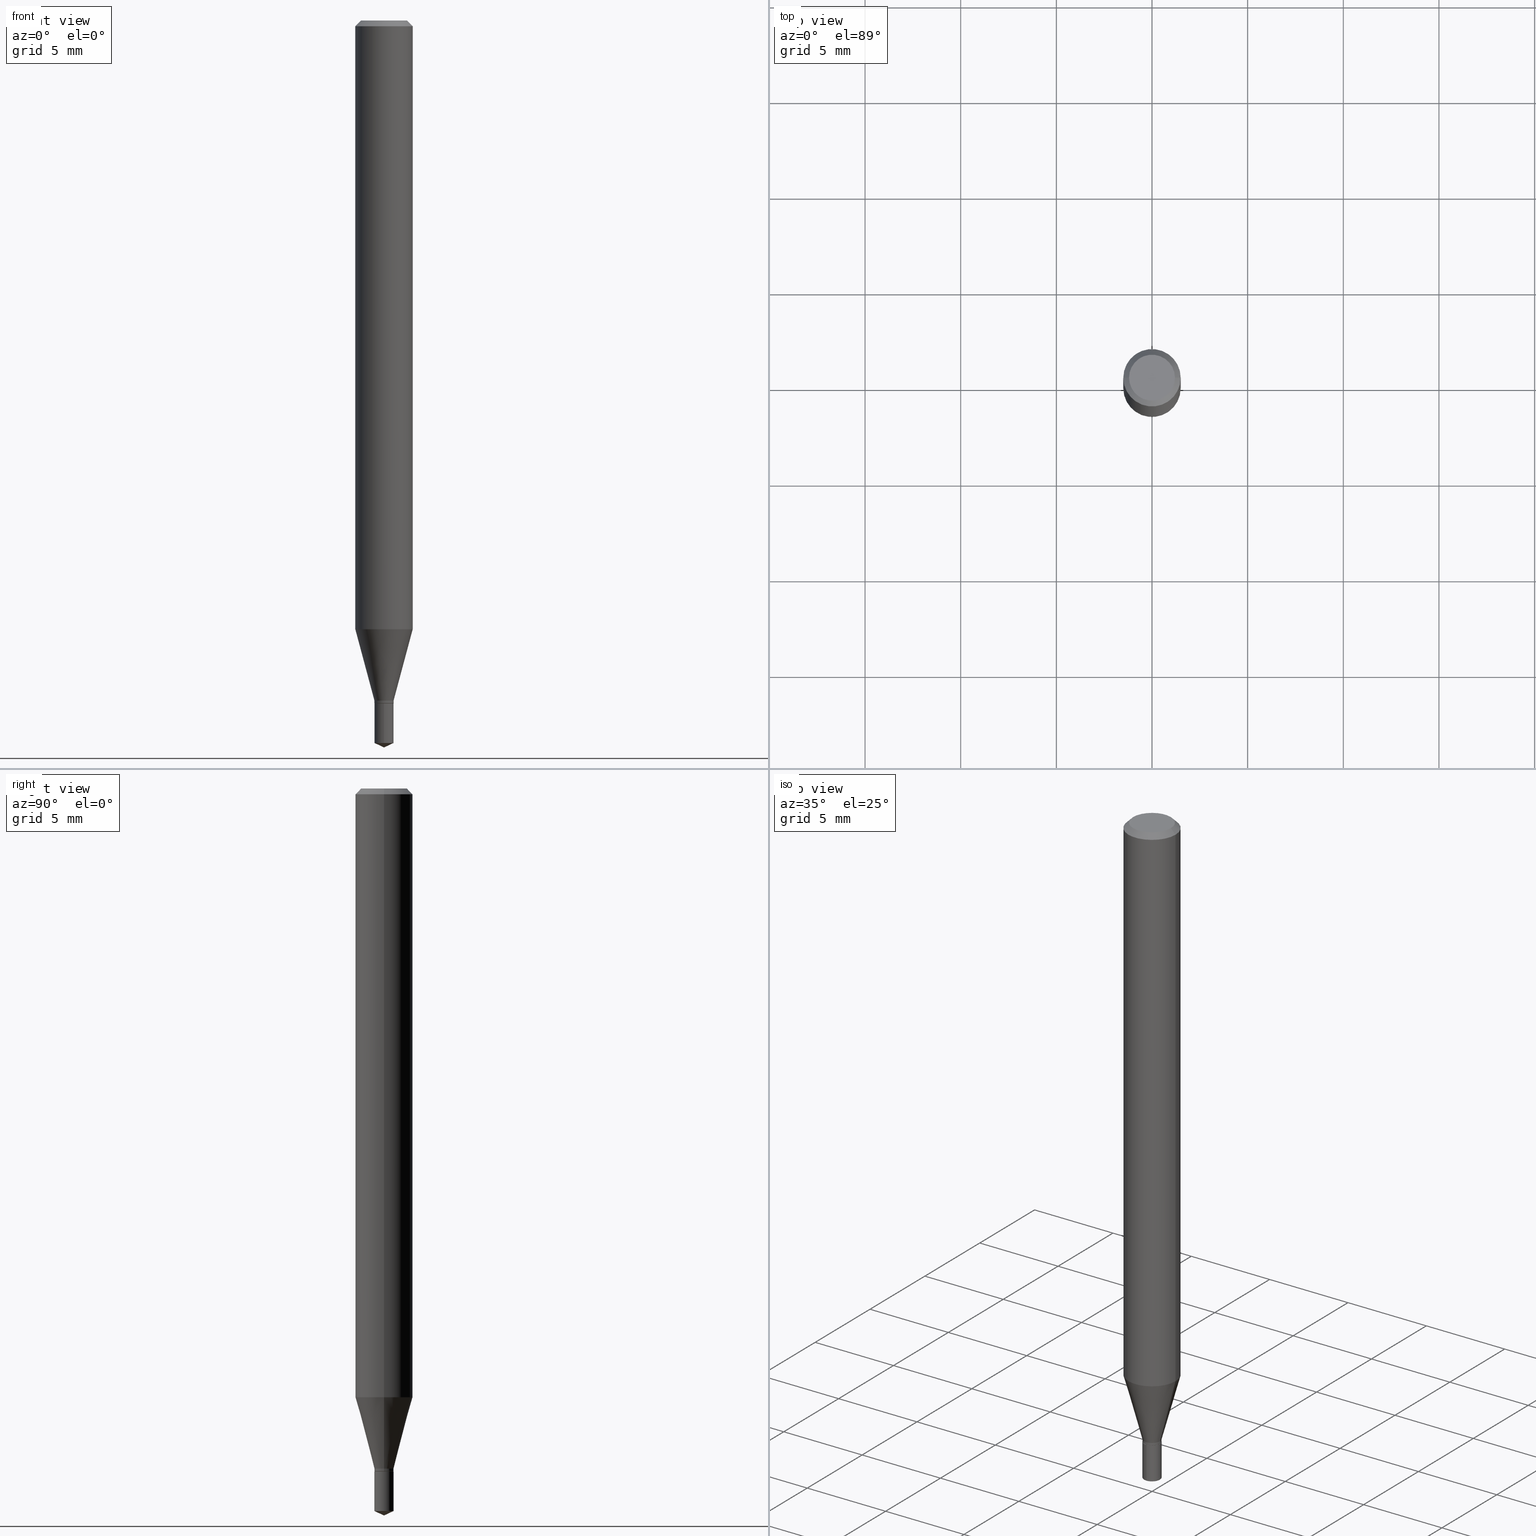
[diagram: canonical four-view strip — front | top / right | iso, engineering-drawing reading convention]
A machine part, canonical four-view strip (front | top / right | iso — engineering-drawing reading convention). The complete STEP part file that produces these views, byte-faithful:
ISO-10303-21;
HEADER;
FILE_DESCRIPTION (( 'STEP AP203' ),
    '1' );
FILE_NAME ('07060.STEP',
    '2024-04-23T19:29:03',
    ( '' ),
    ( '' ),
    'SwSTEP 2.0',
    'SolidWorks 2023',
    '' );
FILE_SCHEMA (( 'CONFIG_CONTROL_DESIGN' ));
ENDSEC;

DATA;
#1 = VECTOR ( 'NONE', #344, 39.37007874015748143 ) ;
#2 = CIRCLE ( 'NONE', #442, 0.05905000000000015098 ) ;
#3 = CC_DESIGN_SECURITY_CLASSIFICATION ( #365, ( #24 ) ) ;
#4 = DIRECTION ( 'NONE',  ( 2.445468806185136597E-29, -3.491481338843145583E-15, -1.000000000000000000 ) ) ;
#5 = DIRECTION ( 'NONE',  ( -2.445468806185136597E-29, 3.491481338843145583E-15, 1.000000000000000000 ) ) ;
#6 = CC_DESIGN_PERSON_AND_ORGANIZATION_ASSIGNMENT ( #473, #276, ( #24 ) ) ;
#7 = ORIENTED_EDGE ( 'NONE', *, *, #432, .T. ) ;
#8 = PERSON_AND_ORGANIZATION ( #34, #270 ) ;
#9 = CIRCLE ( 'NONE', #218, 0.01969999999999999876 ) ;
#10 = ORIENTED_EDGE ( 'NONE', *, *, #37, .T. ) ;
#11 = DATE_AND_TIME ( #200, #408 ) ;
#12 = ORIENTED_EDGE ( 'NONE', *, *, #26, .F. ) ;
#13 = LINE ( 'NONE', #462, #407 ) ;
#14 = UNCERTAINTY_MEASURE_WITH_UNIT (LENGTH_MEASURE( 1.000000000000000082E-05 ), #292, 'distance_accuracy_value', 'NONE');
#15 = CYLINDRICAL_SURFACE ( 'NONE', #287, 0.01969999999999999876 ) ;
#16 = VERTEX_POINT ( 'NONE', #136 ) ;
#17 = EDGE_CURVE ( 'NONE', #138, #446, #443, .T. ) ;
#18 = CARTESIAN_POINT ( 'NONE',  ( 3.422678141136717106E-29, -4.886677281844866061E-15, -1.399599999999999955 ) ) ;
#19 = CARTESIAN_POINT ( 'NONE',  ( 3.695067794339211571E-29, -5.171475619178125435E-15, -1.496099999999999985 ) ) ;
#20 = AXIS2_PLACEMENT_3D ( 'NONE', #405, #211, #366 ) ;
#21 = AXIS2_PLACEMENT_3D ( 'NONE', #284, #36, #214 ) ;
#22 = ORIENTED_EDGE ( 'NONE', *, *, #253, .T. ) ;
#23 = PERSON_AND_ORGANIZATION ( #34, #270 ) ;
#24 = PRODUCT_DEFINITION_FORMATION_WITH_SPECIFIED_SOURCE ( 'ANY', '', #409, .NOT_KNOWN. ) ;
#25 = CYLINDRICAL_SURFACE ( 'NONE', #141, 0.01969999999999999876 ) ;
#26 = EDGE_CURVE ( 'NONE', #331, #138, #321, .T. ) ;
#27 = ORIENTED_EDGE ( 'NONE', *, *, #179, .F. ) ;
#28 = LINE ( 'NONE', #124, #40 ) ;
#29 = VERTEX_POINT ( 'NONE', #305 ) ;
#30 = DIRECTION ( 'NONE',  ( -2.469800009584394325E-29, 3.456637670729313466E-15, 1.000000000000000000 ) ) ;
#31 = EDGE_LOOP ( 'NONE', ( #352, #130, #128, #132 ) ) ;
#32 = CARTESIAN_POINT ( 'NONE',  ( 1.399769189447740433E-16, 0.01969999999999508949, -1.405499999999999750 ) ) ;
#33 = CARTESIAN_POINT ( 'NONE',  ( 3.435883672690116336E-29, -4.905531281074619088E-15, -1.404999999999999805 ) ) ;
#34 = PERSON ( 'UNSPECIFIED', 'UNSPECIFIED', 'UNSPECIFIED', ('UNSPECIFIED'), ('UNSPECIFIED'), ('UNSPECIFIED') ) ;
#35 = AXIS2_PLACEMENT_3D ( 'NONE', #377, #121, #388 ) ;
#36 = DIRECTION ( 'NONE',  ( -2.445468806185136597E-29, 3.491481338843145583E-15, 1.000000000000000000 ) ) ;
#37 = EDGE_CURVE ( 'NONE', #162, #309, #66, .T. ) ;
#38 = APPROVAL_STATUS ( 'not_yet_approved' ) ;
#39 = DIRECTION ( 'NONE',  ( -2.445468806185136597E-29, 3.491481338843145583E-15, 1.000000000000000000 ) ) ;
#40 = VECTOR ( 'NONE', #269, 39.37007874015748143 ) ;
#41 = CIRCLE ( 'NONE', #182, 0.01969999999999999182 ) ;
#42 = CARTESIAN_POINT ( 'NONE',  ( 2.888098660104664642E-31, -4.123439461173780879E-17, -0.01181000000000007565 ) ) ;
#43 = FACE_OUTER_BOUND ( 'NONE', #380, .T. ) ;
#44 = EDGE_LOOP ( 'NONE', ( #273, #91, #475, #65 ) ) ;
#45 = CARTESIAN_POINT ( 'NONE',  ( 3.437106407093208576E-29, -4.907277021744039803E-15, -1.405499999999999527 ) ) ;
#46 = VECTOR ( 'NONE', #472, 39.37007874015748143 ) ;
#47 = DIRECTION ( 'NONE',  ( -2.445468806185136597E-29, 3.491481338843145583E-15, 1.000000000000000000 ) ) ;
#48 = ORIENTED_EDGE ( 'NONE', *, *, #67, .F. ) ;
#49 = CARTESIAN_POINT ( 'NONE',  ( 3.437106407093209137E-29, -4.907277021744040592E-15, -1.405499999999999750 ) ) ;
#50 = CARTESIAN_POINT ( 'NONE',  ( -1.375643647503850468E-16, -0.01970000000000490456, -1.405499999999999750 ) ) ;
#51 = ORIENTED_EDGE ( 'NONE', *, *, #279, .F. ) ;
#52 = APPLICATION_PROTOCOL_DEFINITION ( 'international standard', 'config_control_design', 1994, #482 ) ;
#53 = DIRECTION ( 'NONE',  ( -2.445468806185136597E-29, 3.491481338843145583E-15, 1.000000000000000000 ) ) ;
#54 = FACE_OUTER_BOUND ( 'NONE', #319, .T. ) ;
#55 = EDGE_LOOP ( 'NONE', ( #304, #27 ) ) ;
#56 = DIRECTION ( 'NONE',  ( -2.469800009584394325E-29, 3.456637670729313466E-15, 1.000000000000000000 ) ) ;
#57 = CARTESIAN_POINT ( 'NONE',  ( 3.437106407093209137E-29, -4.907277021744040592E-15, -1.405499999999999750 ) ) ;
#58 = LOCAL_TIME ( 15, 29, 3.000000000000000000, #403 ) ;
#59 = ORIENTED_EDGE ( 'NONE', *, *, #483, .F. ) ;
#60 = CARTESIAN_POINT ( 'NONE',  ( -0.05904999999999999832, 3.711095515056362547E-16, -0.01181000000000007565 ) ) ;
#61 = DIRECTION ( 'NONE',  ( -2.445468806185136597E-29, 3.491481338843145583E-15, 1.000000000000000000 ) ) ;
#62 = ORIENTED_EDGE ( 'NONE', *, *, #187, .T. ) ;
#63 = DIRECTION ( 'NONE',  ( -2.438088387897960049E-29, 3.491481338843145188E-15, 1.000000000000000000 ) ) ;
#64 = PERSON_AND_ORGANIZATION_ROLE ( 'classification_officer' ) ;
#65 = ORIENTED_EDGE ( 'NONE', *, *, #448, .F. ) ;
#66 = LINE ( 'NONE', #135, #399 ) ;
#67 = EDGE_CURVE ( 'NONE', #429, #96, #463, .T. ) ;
#68 = PRODUCT_DEFINITION_SHAPE ( 'NONE', 'NONE',  #83 ) ;
#69 = CARTESIAN_POINT ( 'NONE',  ( -0.01920000000000000179, -4.770852816478099815E-15, -1.405499999999999527 ) ) ;
#70 = AXIS2_PLACEMENT_3D ( 'NONE', #110, #76, #258 ) ;
#71 = MANIFOLD_SOLID_BREP ( 'Body-Move/Copy2[1]', #464 ) ;
#72 = LINE ( 'NONE', #69, #114 ) ;
#73 = APPROVAL_ROLE ( '' ) ;
#74 = DIRECTION ( 'NONE',  ( -2.445468806185136597E-29, 3.491481338843145583E-15, 1.000000000000000000 ) ) ;
#75 = AXIS2_PLACEMENT_3D ( 'NONE', #372, #5, #151 ) ;
#76 = DIRECTION ( 'NONE',  ( 0.000000000000000000, 0.000000000000000000, 1.000000000000000000 ) ) ;
#77 = EDGE_CURVE ( 'NONE', #29, #162, #477, .T. ) ;
#78 = CARTESIAN_POINT ( 'NONE',  ( 1.399769189447760894E-16, 0.01969999999999508949, -1.405499999999999750 ) ) ;
#79 = CONICAL_SURFACE ( 'NONE', #322, 0.01920000000000000179, 0.7853981633978154298 ) ;
#80 = EDGE_CURVE ( 'NONE', #16, #96, #320, .T. ) ;
#81 = LINE ( 'NONE', #271, #311 ) ;
#82 = ORIENTED_EDGE ( 'NONE', *, *, #334, .F. ) ;
#83 = PRODUCT_DEFINITION ( 'UNKNOWN', '', #24, #227 ) ;
#84 = ORIENTED_EDGE ( 'NONE', *, *, #186, .F. ) ;
#85 = EDGE_LOOP ( 'NONE', ( #152, #314, #62, #458 ) ) ;
#86 = CIRCLE ( 'NONE', #382, 0.01969999999999999182 ) ;
#87 = ORIENTED_EDGE ( 'NONE', *, *, #417, .T. ) ;
#88 = APPROVAL_ROLE ( '' ) ;
#89 = LINE ( 'NONE', #32, #137 ) ;
#90 = LINE ( 'NONE', #391, #420 ) ;
#91 = ORIENTED_EDGE ( 'NONE', *, *, #316, .T. ) ;
#92 = ORIENTED_EDGE ( 'NONE', *, *, #253, .F. ) ;
#93 = CARTESIAN_POINT ( 'NONE',  ( 3.695667537867242587E-29, -5.171475619178124646E-15, -1.496099999999999985 ) ) ;
#94 = DIRECTION ( 'NONE',  ( -2.469800009584394325E-29, 3.456637670729313466E-15, 1.000000000000000000 ) ) ;
#95 = ADVANCED_FACE ( 'NONE', ( #206 ), #212, .T. ) ;
#96 = VERTEX_POINT ( 'NONE', #170 ) ;
#97 = SECURITY_CLASSIFICATION_LEVEL ( 'unclassified' ) ;
#98 = DIRECTION ( 'NONE',  ( -2.445468806185136597E-29, 3.491481338843145583E-15, 1.000000000000000000 ) ) ;
#99 = CARTESIAN_POINT ( 'NONE',  ( 3.437106407093209137E-29, -4.907277021744040592E-15, -1.405499999999999750 ) ) ;
#100 = AXIS2_PLACEMENT_3D ( 'NONE', #428, #119, #469 ) ;
#101 = AXIS2_PLACEMENT_3D ( 'NONE', #422, #232, #300 ) ;
#102 = CARTESIAN_POINT ( 'NONE',  ( 8.265746106709734507E-48, -1.180129479067563789E-33, -3.380025165646692144E-19 ) ) ;
#103 = LINE ( 'NONE', #327, #294 ) ;
#104 = CYLINDRICAL_SURFACE ( 'NONE', #223, 0.01969999999999999182 ) ;
#105 = ADVANCED_FACE ( 'NONE', ( #193 ), #25, .T. ) ;
#106 = AXIS2_PLACEMENT_3D ( 'NONE', #183, #418, #454 ) ;
#107 = APPROVAL ( #38, 'UNSPECIFIED' ) ;
#108 = EDGE_CURVE ( 'NONE', #175, #138, #28, .T. ) ;
#109 = CIRCLE ( 'NONE', #383, 0.04724000000000000421 ) ;
#110 = CARTESIAN_POINT ( 'NONE',  ( 0.000000000000000000, 0.000000000000000000, 0.000000000000000000 ) ) ;
#111 = ADVANCED_FACE ( 'NONE', ( #201 ), #353, .F. ) ;
#112 = FACE_OUTER_BOUND ( 'NONE', #85, .T. ) ;
#113 = DIRECTION ( 'NONE',  ( -2.445468806185136597E-29, 3.491481338843145583E-15, 1.000000000000000000 ) ) ;
#114 = VECTOR ( 'NONE', #217, 39.37007874015748143 ) ;
#115 = LOCAL_TIME ( 15, 29, 3.000000000000000000, #208 ) ;
#116 = ORIENTED_EDGE ( 'NONE', *, *, #425, .T. ) ;
#117 = ORIENTED_EDGE ( 'NONE', *, *, #483, .T. ) ;
#118 = CALENDAR_DATE ( 2024, 23, 4 ) ;
#119 = DIRECTION ( 'NONE',  ( -2.445468806185136597E-29, 3.491481338843145583E-15, 1.000000000000000000 ) ) ;
#120 = ORIENTED_EDGE ( 'NONE', *, *, #433, .F. ) ;
#121 = DIRECTION ( 'NONE',  ( -2.445468806185136597E-29, 3.491481338843145583E-15, 1.000000000000000000 ) ) ;
#122 = ORIENTED_EDGE ( 'NONE', *, *, #158, .F. ) ;
#123 = DIRECTION ( 'NONE',  ( -0.2588190451025214611, 5.211531920934551042E-15, 0.9659258262890682012 ) ) ;
#124 = CARTESIAN_POINT ( 'NONE',  ( 0.01969999999999999182, -1.375643647504194116E-16, 9.606068248317989714E-31 ) ) ;
#125 = AXIS2_PLACEMENT_3D ( 'NONE', #167, #436, #471 ) ;
#126 = CC_DESIGN_APPROVAL ( #107, ( #365 ) ) ;
#127 = FACE_OUTER_BOUND ( 'NONE', #31, .T. ) ;
#128 = ORIENTED_EDGE ( 'NONE', *, *, #247, .F. ) ;
#129 = CYLINDRICAL_SURFACE ( 'NONE', #166, 0.05905000000000007465 ) ;
#130 = ORIENTED_EDGE ( 'NONE', *, *, #145, .T. ) ;
#131 = PERSON_AND_ORGANIZATION_ROLE ( 'creator' ) ;
#132 = ORIENTED_EDGE ( 'NONE', *, *, #425, .F. ) ;
#133 = CARTESIAN_POINT ( 'NONE',  ( 3.638182060787519581E-29, -5.188694819350753502E-15, -1.486913739134346546 ) ) ;
#134 = DIRECTION ( 'NONE',  ( -6.982962677686265133E-15, -1.000000000000000000, 0.000000000000000000 ) ) ;
#135 = CARTESIAN_POINT ( 'NONE',  ( 0.05904999999999999832, -4.463468013801466955E-16, -0.01181000000000007565 ) ) ;
#136 = CARTESIAN_POINT ( 'NONE',  ( -1.375643647503830254E-16, -0.01970000000000518905, -1.486913739134346546 ) ) ;
#137 = VECTOR ( 'NONE', #236, 39.37007874015748143 ) ;
#138 = VERTEX_POINT ( 'NONE', #359 ) ;
#139 = CARTESIAN_POINT ( 'NONE',  ( 8.265746106709734507E-48, -1.180129479067563789E-33, -3.380025165646692144E-19 ) ) ;
#140 = CARTESIAN_POINT ( 'NONE',  ( -0.05904999999999999832, -1.788007513125965164E-15, -0.01181000000000007565 ) ) ;
#141 = AXIS2_PLACEMENT_3D ( 'NONE', #49, #387, #310 ) ;
#142 = DIRECTION ( 'NONE',  ( -2.445468806185136597E-29, 3.491481338843145583E-15, 1.000000000000000000 ) ) ;
#143 = VECTOR ( 'NONE', #339, 39.37007874015748143 ) ;
#144 = DIMENSIONAL_EXPONENTS ( 1.000000000000000000, 0.000000000000000000, 0.000000000000000000, 0.000000000000000000, 0.000000000000000000, 0.000000000000000000, 0.000000000000000000 ) ;
#145 = EDGE_CURVE ( 'NONE', #96, #343, #89, .T. ) ;
#146 = FACE_OUTER_BOUND ( 'NONE', #192, .T. ) ;
#147 = DIRECTION ( 'NONE',  ( -6.982962677686267499E-15, -1.000000000000000000, 3.520397390770465703E-15 ) ) ;
#148 = AXIS2_PLACEMENT_3D ( 'NONE', #18, #61, #197 ) ;
#149 = LENGTH_MEASURE_WITH_UNIT ( LENGTH_MEASURE( 0.02539999999999999897 ), #381 );
#150 = AXIS2_PLACEMENT_3D ( 'NONE', #395, #225, #306 ) ;
#151 = DIRECTION ( 'NONE',  ( 1.000000000000000000, -6.982962677686266711E-15, 4.876176775795936353E-29 ) ) ;
#152 = ORIENTED_EDGE ( 'NONE', *, *, #37, .F. ) ;
#153 = PERSON_AND_ORGANIZATION_ROLE ( 'design_owner' ) ;
#154 = APPROVAL_PERSON_ORGANIZATION ( #303, #194, #88 ) ;
#155 = APPROVAL ( #397, 'UNSPECIFIED' ) ;
#156 = DIRECTION ( 'NONE',  ( 1.000000000000000000, -6.982962677686266711E-15, 4.876176775795936353E-29 ) ) ;
#157 = ORIENTED_EDGE ( 'NONE', *, *, #179, .T. ) ;
#158 = EDGE_CURVE ( 'NONE', #138, #331, #255, .T. ) ;
#159 = ORIENTED_EDGE ( 'NONE', *, *, #417, .F. ) ;
#160 = CALENDAR_DATE ( 2024, 23, 4 ) ;
#161 = DIRECTION ( 'NONE',  ( -6.982962677686265133E-15, -1.000000000000000000, 0.000000000000000000 ) ) ;
#162 = VERTEX_POINT ( 'NONE', #216 ) ;
#163 = CARTESIAN_POINT ( 'NONE',  ( 2.888098660104664642E-31, -4.123439461173780879E-17, -0.01181000000000007565 ) ) ;
#164 = CC_DESIGN_DATE_AND_TIME_ASSIGNMENT ( #11, #313, ( #83 ) ) ;
#165 = CIRCLE ( 'NONE', #185, 0.01969999999999999876 ) ;
#166 = AXIS2_PLACEMENT_3D ( 'NONE', #172, #47, #156 ) ;
#167 = CARTESIAN_POINT ( 'NONE',  ( 2.888098660104664642E-31, -4.123439461173780879E-17, -0.01181000000000007565 ) ) ;
#168 = VERTEX_POINT ( 'NONE', #362 ) ;
#169 = ORIENTED_EDGE ( 'NONE', *, *, #17, .T. ) ;
#170 = CARTESIAN_POINT ( 'NONE',  ( 1.399769189447761140E-16, 0.01969999999999480847, -1.486913739134346546 ) ) ;
#171 = EDGE_CURVE ( 'NONE', #175, #349, #86, .T. ) ;
#172 = CARTESIAN_POINT ( 'NONE',  ( 0.000000000000000000, 0.000000000000000000, 0.000000000000000000 ) ) ;
#173 = PERSON_AND_ORGANIZATION ( #34, #270 ) ;
#174 = CARTESIAN_POINT ( 'NONE',  ( 0.05905000000000015098, -4.786275548690248872E-15, -1.252743800722164513 ) ) ;
#175 = VERTEX_POINT ( 'NONE', #474 ) ;
#176 = CARTESIAN_POINT ( 'NONE',  ( 0.01969999999999999182, -5.024241646595286064E-15, -1.399599999999999955 ) ) ;
#177 = LINE ( 'NONE', #489, #415 ) ;
#178 = COORDINATED_UNIVERSAL_TIME_OFFSET ( 5, 0, .BEHIND. ) ;
#179 = EDGE_CURVE ( 'NONE', #168, #285, #486, .T. ) ;
#180 = VECTOR ( 'NONE', #441, 39.37007874015748143 ) ;
#181 = CARTESIAN_POINT ( 'NONE',  ( 3.437106407093209137E-29, -4.907277021744040592E-15, -1.405499999999999750 ) ) ;
#182 = AXIS2_PLACEMENT_3D ( 'NONE', #33, #142, #289 ) ;
#183 = CARTESIAN_POINT ( 'NONE',  ( 3.638182060787519581E-29, -5.188694819350753502E-15, -1.486913739134346546 ) ) ;
#184 = FACE_OUTER_BOUND ( 'NONE', #237, .T. ) ;
#185 = AXIS2_PLACEMENT_3D ( 'NONE', #181, #411, #324 ) ;
#186 = EDGE_CURVE ( 'NONE', #238, #309, #375, .T. ) ;
#187 = EDGE_CURVE ( 'NONE', #29, #238, #398, .T. ) ;
#188 = ORIENTED_EDGE ( 'NONE', *, *, #488, .T. ) ;
#189 = FACE_OUTER_BOUND ( 'NONE', #345, .T. ) ;
#190 = CIRCLE ( 'NONE', #106, 0.01969999999999999182 ) ;
#191 = DIRECTION ( 'NONE',  ( 2.469800009584394044E-29, -3.456637670729313466E-15, -1.000000000000000000 ) ) ;
#192 = EDGE_LOOP ( 'NONE', ( #92, #299, #438, #12 ) ) ;
#193 = FACE_OUTER_BOUND ( 'NONE', #195, .T. ) ;
#194 = APPROVAL ( #385, 'UNSPECIFIED' ) ;
#195 = EDGE_LOOP ( 'NONE', ( #384, #479, #116, #120 ) ) ;
#196 = APPROVAL_ROLE ( '' ) ;
#197 = DIRECTION ( 'NONE',  ( 1.000000000000000000, -6.982962677686280910E-15, 0.000000000000000000 ) ) ;
#198 = DIRECTION ( 'NONE',  ( -2.469800009584394325E-29, 3.456637670729313466E-15, 1.000000000000000000 ) ) ;
#199 = EDGE_LOOP ( 'NONE', ( #51, #117, #226, #84 ) ) ;
#200 = CALENDAR_DATE ( 2024, 23, 4 ) ;
#201 = FACE_OUTER_BOUND ( 'NONE', #423, .T. ) ;
#202 = AXIS2_PLACEMENT_3D ( 'NONE', #390, #53, #325 ) ;
#203 = DIRECTION ( 'NONE',  ( -6.328713451373370956E-15, -0.9063077870366487154, 0.4226182617407021613 ) ) ;
#204 = ORIENTED_EDGE ( 'NONE', *, *, #210, .T. ) ;
#205 = ORIENTED_EDGE ( 'NONE', *, *, #67, .T. ) ;
#206 = FACE_OUTER_BOUND ( 'NONE', #275, .T. ) ;
#207 = FACE_OUTER_BOUND ( 'NONE', #55, .T. ) ;
#208 = COORDINATED_UNIVERSAL_TIME_OFFSET ( 5, 0, .BEHIND. ) ;
#209 = DIRECTION ( 'NONE',  ( -1.000000000000000000, 6.982962677686265922E-15, -4.876176775795935793E-29 ) ) ;
#210 = EDGE_CURVE ( 'NONE', #331, #427, #13, .T. ) ;
#211 = DIRECTION ( 'NONE',  ( -2.445468806185136597E-29, 3.491481338843145583E-15, 1.000000000000000000 ) ) ;
#212 = CONICAL_SURFACE ( 'NONE', #298, 0.05904999999999999832, 0.7853981633974450594 ) ;
#213 = CONICAL_SURFACE ( 'NONE', #487, 84.42940631927405093, 1.134464013796314674 ) ;
#214 = DIRECTION ( 'NONE',  ( 1.000000000000000000, -6.982962677686280910E-15, 0.000000000000000000 ) ) ;
#215 = FACE_OUTER_BOUND ( 'NONE', #435, .T. ) ;
#216 = CARTESIAN_POINT ( 'NONE',  ( 0.04724000000000000421, -3.852183633974369345E-16, -3.380025165621689721E-19 ) ) ;
#217 = DIRECTION ( 'NONE',  ( -0.7071067811868071429, 7.493145998871292905E-15, 0.7071067811862878916 ) ) ;
#218 = AXIS2_PLACEMENT_3D ( 'NONE', #99, #30, #134 ) ;
#219 = CC_DESIGN_DATE_AND_TIME_ASSIGNMENT ( #252, #414, ( #365 ) ) ;
#220 = APPLICATION_PROTOCOL_DEFINITION ( 'international standard', 'config_control_design', 1994, #268 ) ;
#221 = CONICAL_SURFACE ( 'NONE', #20, 0.01920000000000000179, 0.7853981633978154298 ) ;
#222 = CYLINDRICAL_SURFACE ( 'NONE', #75, 0.05905000000000007465 ) ;
#223 = AXIS2_PLACEMENT_3D ( 'NONE', #444, #39, #361 ) ;
#224 = DIRECTION ( 'NONE',  ( -2.445468806185136597E-29, 3.491481338843145583E-15, 1.000000000000000000 ) ) ;
#225 = DIRECTION ( 'NONE',  ( -2.445468806185136597E-29, 3.491481338843145583E-15, 1.000000000000000000 ) ) ;
#226 = ORIENTED_EDGE ( 'NONE', *, *, #449, .T. ) ;
#227 = DESIGN_CONTEXT ( 'detailed design', #482, 'design' ) ;
#228 = ORIENTED_EDGE ( 'NONE', *, *, #210, .F. ) ;
#229 = APPROVAL_DATE_TIME ( #350, #194 ) ;
#230 = DIRECTION ( 'NONE',  ( 0.7071067811865452413, -7.319954787623248157E-15, -0.7071067811865497932 ) ) ;
#231 = AXIS2_PLACEMENT_3D ( 'NONE', #402, #63, #439 ) ;
#232 = DIRECTION ( 'NONE',  ( -2.469800009584394325E-29, 3.456637670729313466E-15, 1.000000000000000000 ) ) ;
#233 = ADVANCED_FACE ( 'NONE', ( #267 ), #221, .T. ) ;
#234 = ORIENTED_EDGE ( 'NONE', *, *, #247, .T. ) ;
#235 = COORDINATED_UNIVERSAL_TIME_OFFSET ( 5, 0, .BEHIND. ) ;
#236 = DIRECTION ( 'NONE',  ( -2.469800009584394325E-29, 3.456637670729313466E-15, 1.000000000000000000 ) ) ;
#237 = EDGE_LOOP ( 'NONE', ( #188, #245, #357, #393 ) ) ;
#238 = VERTEX_POINT ( 'NONE', #140 ) ;
#239 = ORIENTED_EDGE ( 'NONE', *, *, #171, .T. ) ;
#240 = COORDINATED_UNIVERSAL_TIME_OFFSET ( 5, 0, .BEHIND. ) ;
#241 = DIRECTION ( 'NONE',  ( 1.000000000000000000, -6.982962677686266711E-15, 0.000000000000000000 ) ) ;
#242 = AXIS2_PLACEMENT_3D ( 'NONE', #102, #394, #318 ) ;
#243 = AXIS2_PLACEMENT_3D ( 'NONE', #42, #4, #335 ) ;
#244 = ADVANCED_FACE ( 'NONE', ( #476 ), #336, .T. ) ;
#245 = ORIENTED_EDGE ( 'NONE', *, *, #279, .T. ) ;
#246 = CARTESIAN_POINT ( 'NONE',  ( 4.132873053354867254E-48, -5.900647395337818946E-34, -1.690012582823346072E-19 ) ) ;
#247 = EDGE_CURVE ( 'NONE', #396, #343, #165, .T. ) ;
#248 = ADVANCED_FACE ( 'NONE', ( #215 ), #104, .T. ) ;
#249 = CARTESIAN_POINT ( 'NONE',  ( 0.05904999999999999832, -4.535783407291118600E-16, -0.01181000000000007565 ) ) ;
#250 = APPROVAL_PERSON_ORGANIZATION ( #468, #155, #196 ) ;
#251 = LOCAL_TIME ( 15, 29, 3.000000000000000000, #178 ) ;
#252 = DATE_AND_TIME ( #481, #115 ) ;
#253 = EDGE_CURVE ( 'NONE', #349, #331, #103, .T. ) ;
#254 = CYLINDRICAL_SURFACE ( 'NONE', #480, 0.01969999999999999182 ) ;
#255 = CIRCLE ( 'NONE', #202, 0.01969999999999999182 ) ;
#256 = CIRCLE ( 'NONE', #150, 0.01920000000000000179 ) ;
#257 =( NAMED_UNIT ( * ) SI_UNIT ( $, .STERADIAN. ) SOLID_ANGLE_UNIT ( ) );
#258 = DIRECTION ( 'NONE',  ( 1.000000000000000000, 0.000000000000000000, 0.000000000000000000 ) ) ;
#259 = FACE_OUTER_BOUND ( 'NONE', #434, .T. ) ;
#260 = EDGE_CURVE ( 'NONE', #349, #175, #41, .T. ) ;
#261 = CARTESIAN_POINT ( 'NONE',  ( 3.063545886807862296E-29, -4.373931602572873162E-15, -1.252743800722164513 ) ) ;
#262 = FACE_OUTER_BOUND ( 'NONE', #199, .T. ) ;
#263 = ORIENTED_EDGE ( 'NONE', *, *, #17, .F. ) ;
#264 = ORIENTED_EDGE ( 'NONE', *, *, #448, .T. ) ;
#265 = DIRECTION ( 'NONE',  ( 6.982962677686265922E-15, 1.000000000000000000, -3.456637670729313466E-15 ) ) ;
#266 = ORIENTED_EDGE ( 'NONE', *, *, #108, .F. ) ;
#267 = FACE_OUTER_BOUND ( 'NONE', #44, .T. ) ;
#268 = APPLICATION_CONTEXT ( 'configuration controlled 3d designs of mechanical parts and assemblies' ) ;
#269 = DIRECTION ( 'NONE',  ( -2.445468806185136877E-29, 3.491481338843145188E-15, 1.000000000000000000 ) ) ;
#270 = ORGANIZATION ( 'UNSPECIFIED', 'UNSPECIFIED', '' ) ;
#271 = CARTESIAN_POINT ( 'NONE',  ( 3.626672781583897993E-29, -5.269421170246108163E-15, -1.496099999999999985 ) ) ;
#272 = ORIENTED_EDGE ( 'NONE', *, *, #187, .F. ) ;
#273 = ORIENTED_EDGE ( 'NONE', *, *, #369, .T. ) ;
#274 = CARTESIAN_POINT ( 'NONE',  ( 3.437106407093209137E-29, -4.907277021744040592E-15, -1.405499999999999750 ) ) ;
#275 = EDGE_LOOP ( 'NONE', ( #460, #10, #7, #272 ) ) ;
#276 = PERSON_AND_ORGANIZATION_ROLE ( 'design_supplier' ) ;
#277 = CARTESIAN_POINT ( 'NONE',  ( 2.888098660104664642E-31, -4.123439461173780879E-17, -0.01181000000000007565 ) ) ;
#278 = PLANE ( 'NONE',  #231 ) ;
#279 = EDGE_CURVE ( 'NONE', #427, #238, #177, .T. ) ;
#280 = CARTESIAN_POINT ( 'NONE',  ( 0.05905000000000007465, -4.123439461173745750E-16, 2.879382386107504074E-30 ) ) ;
#281 = APPROVAL_DATE_TIME ( #341, #155 ) ;
#282 = DIRECTION ( 'NONE',  ( -6.982962677686265922E-15, -1.000000000000000000, 0.000000000000000000 ) ) ;
#283 = CIRCLE ( 'NONE', #125, 0.05904999999999999832 ) ;
#284 = CARTESIAN_POINT ( 'NONE',  ( 3.422678141136717106E-29, -4.886677281844866061E-15, -1.399599999999999955 ) ) ;
#285 = VERTEX_POINT ( 'NONE', #323 ) ;
#286 = DIRECTION ( 'NONE',  ( 1.000000000000000000, -6.982962677686266711E-15, 4.876185090822587894E-29 ) ) ;
#287 = AXIS2_PLACEMENT_3D ( 'NONE', #57, #94, #161 ) ;
#288 = DATE_AND_TIME ( #326, #251 ) ;
#289 = DIRECTION ( 'NONE',  ( 1.000000000000000000, -6.982962677686280910E-15, 0.000000000000000000 ) ) ;
#290 = CARTESIAN_POINT ( 'NONE',  ( -0.01969999999999999182, -4.756127362515003660E-15, -1.399599999999999955 ) ) ;
#291 = EDGE_CURVE ( 'NONE', #162, #29, #109, .T. ) ;
#292 =( CONVERSION_BASED_UNIT ( 'INCH', #149 ) LENGTH_UNIT ( ) NAMED_UNIT ( #144 ) );
#293 = ADVANCED_FACE ( 'NONE', ( #146 ), #254, .T. ) ;
#294 = VECTOR ( 'NONE', #485, 39.37007874015748143 ) ;
#295 = MECHANICAL_CONTEXT ( 'NONE', #268, 'mechanical' ) ;
#296 = PRODUCT_RELATED_PRODUCT_CATEGORY ( 'detail', '', ( #409 ) ) ;
#297 = DIRECTION ( 'NONE',  ( 1.000000000000000000, -6.982962677686250933E-15, 0.000000000000000000 ) ) ;
#298 = AXIS2_PLACEMENT_3D ( 'NONE', #277, #356, #347 ) ;
#299 = ORIENTED_EDGE ( 'NONE', *, *, #260, .T. ) ;
#300 = DIRECTION ( 'NONE',  ( -6.982962677686267499E-15, -1.000000000000000000, 3.520397390770465703E-15 ) ) ;
#301 = CC_DESIGN_PERSON_AND_ORGANIZATION_ASSIGNMENT ( #173, #64, ( #365 ) ) ;
#302 = ORIENTED_EDGE ( 'NONE', *, *, #291, .T. ) ;
#303 = PERSON_AND_ORGANIZATION ( #34, #270 ) ;
#304 = ORIENTED_EDGE ( 'NONE', *, *, #369, .F. ) ;
#305 = CARTESIAN_POINT ( 'NONE',  ( -0.04724000000000000421, 3.504923541997677355E-16, -3.380025165670481712E-19 ) ) ;
#306 = DIRECTION ( 'NONE',  ( 1.000000000000000000, -6.982962677686250933E-15, 0.000000000000000000 ) ) ;
#307 = ORIENTED_EDGE ( 'NONE', *, *, #158, .T. ) ;
#308 = AXIS2_PLACEMENT_3D ( 'NONE', #133, #56, #282 ) ;
#309 = VERTEX_POINT ( 'NONE', #249 ) ;
#310 = DIRECTION ( 'NONE',  ( -6.982962677686265133E-15, -1.000000000000000000, 0.000000000000000000 ) ) ;
#311 = VECTOR ( 'NONE', #203, 39.37007874015748143 ) ;
#312 = ORIENTED_EDGE ( 'NONE', *, *, #260, .F. ) ;
#313 = DATE_TIME_ROLE ( 'creation_date' ) ;
#314 = ORIENTED_EDGE ( 'NONE', *, *, #77, .F. ) ;
#315 = CC_DESIGN_PERSON_AND_ORGANIZATION_ASSIGNMENT ( #23, #131, ( #24 ) ) ;
#316 = EDGE_CURVE ( 'NONE', #168, #349, #72, .T. ) ;
#317 = ORIENTED_EDGE ( 'NONE', *, *, #488, .F. ) ;
#318 = DIRECTION ( 'NONE',  ( 1.000000000000000000, -6.982962677686266711E-15, 4.876185090822587894E-29 ) ) ;
#319 = EDGE_LOOP ( 'NONE', ( #159, #205, #340 ) ) ;
#320 = CIRCLE ( 'NONE', #308, 0.01969999999999999182 ) ;
#321 = CIRCLE ( 'NONE', #148, 0.01969999999999999182 ) ;
#322 = AXIS2_PLACEMENT_3D ( 'NONE', #45, #224, #297 ) ;
#323 = CARTESIAN_POINT ( 'NONE',  ( 0.01920000000000000179, -5.041349905155615221E-15, -1.405499999999999527 ) ) ;
#324 = DIRECTION ( 'NONE',  ( -6.982962677686265133E-15, -1.000000000000000000, 0.000000000000000000 ) ) ;
#325 = DIRECTION ( 'NONE',  ( 1.000000000000000000, -6.982962677686280910E-15, 0.000000000000000000 ) ) ;
#326 = CALENDAR_DATE ( 2024, 23, 4 ) ;
#327 = CARTESIAN_POINT ( 'NONE',  ( -0.01969999999999999182, 1.399769189447396785E-16, -9.690302127802160750E-31 ) ) ;
#328 = CLOSED_SHELL ( 'NONE', ( #233, #95, #453, #244, #248, #293, #355, #360, #351, #111, #437, #478 ) ) ;
#329 = DIRECTION ( 'NONE',  ( 0.2588190451025214611, 1.565188264969621573E-15, 0.9659258262890682012 ) ) ;
#330 = CC_DESIGN_APPROVAL ( #155, ( #83 ) ) ;
#331 = VERTEX_POINT ( 'NONE', #290 ) ;
#332 = APPROVAL_DATE_TIME ( #288, #107 ) ;
#333 = CARTESIAN_POINT ( 'NONE',  ( -0.01969999999999999182, -4.756127362515003660E-15, -1.404999999999999805 ) ) ;
#334 = EDGE_CURVE ( 'NONE', #96, #16, #190, .T. ) ;
#335 = DIRECTION ( 'NONE',  ( -1.000000000000000000, 6.982962677686266711E-15, 0.000000000000000000 ) ) ;
#336 = CONICAL_SURFACE ( 'NONE', #21, 0.01969999999999999182, 0.2617993877991501295 ) ;
#337 = CC_DESIGN_PERSON_AND_ORGANIZATION_ASSIGNMENT ( #430, #346, ( #83 ) ) ;
#338 = DIRECTION ( 'NONE',  ( 1.000000000000000000, -6.982962677686271444E-15, 0.000000000000000000 ) ) ;
#339 = DIRECTION ( 'NONE',  ( -2.445468806185136877E-29, 3.491481338843145188E-15, 1.000000000000000000 ) ) ;
#340 = ORIENTED_EDGE ( 'NONE', *, *, #80, .F. ) ;
#341 = DATE_AND_TIME ( #160, #58 ) ;
#342 = CIRCLE ( 'NONE', #354, 0.05905000000000015098 ) ;
#343 = VERTEX_POINT ( 'NONE', #78 ) ;
#344 = DIRECTION ( 'NONE',  ( -0.7071067811865452413, 2.468850131082233000E-15, -0.7071067811865497932 ) ) ;
#345 = EDGE_LOOP ( 'NONE', ( #48, #87, #82 ) ) ;
#346 = PERSON_AND_ORGANIZATION_ROLE ( 'creator' ) ;
#347 = DIRECTION ( 'NONE',  ( -1.000000000000000000, 6.982962677686266711E-15, 0.000000000000000000 ) ) ;
#348 = CARTESIAN_POINT ( 'NONE',  ( -0.05905000000000015098, -3.954356117106533670E-15, -1.252743800722164513 ) ) ;
#349 = VERTEX_POINT ( 'NONE', #333 ) ;
#350 = DATE_AND_TIME ( #118, #378 ) ;
#351 = ADVANCED_FACE ( 'NONE', ( #112 ), #376, .T. ) ;
#352 = ORIENTED_EDGE ( 'NONE', *, *, #80, .T. ) ;
#353 = PLANE ( 'NONE',  #440 ) ;
#354 = AXIS2_PLACEMENT_3D ( 'NONE', #455, #113, #338 ) ;
#355 = ADVANCED_FACE ( 'NONE', ( #259 ), #400, .T. ) ;
#356 = DIRECTION ( 'NONE',  ( 2.445468806185136597E-29, -3.491481338843145583E-15, -1.000000000000000000 ) ) ;
#357 = ORIENTED_EDGE ( 'NONE', *, *, #432, .F. ) ;
#358 = LINE ( 'NONE', #461, #46 ) ;
#359 = CARTESIAN_POINT ( 'NONE',  ( 0.01969999999999999182, -5.024241646595286064E-15, -1.399599999999999955 ) ) ;
#360 = ADVANCED_FACE ( 'NONE', ( #262 ), #129, .T. ) ;
#361 = DIRECTION ( 'NONE',  ( 1.000000000000000000, -6.982962677686267499E-15, 4.876176775795935793E-29 ) ) ;
#362 = CARTESIAN_POINT ( 'NONE',  ( -0.01920000000000000179, -4.768203589303990191E-15, -1.405499999999999527 ) ) ;
#363 = AXIS2_PLACEMENT_3D ( 'NONE', #163, #98, #241 ) ;
#364 =( GEOMETRIC_REPRESENTATION_CONTEXT ( 3 ) GLOBAL_UNCERTAINTY_ASSIGNED_CONTEXT ( ( #14 ) ) GLOBAL_UNIT_ASSIGNED_CONTEXT ( ( #292, #416, #257 ) ) REPRESENTATION_CONTEXT ( 'NONE', 'WORKASPACE' ) );
#365 = SECURITY_CLASSIFICATION ( '', '', #97 ) ;
#366 = DIRECTION ( 'NONE',  ( 1.000000000000000000, -6.982962677686250933E-15, 0.000000000000000000 ) ) ;
#367 = PERSON_AND_ORGANIZATION ( #34, #270 ) ;
#368 = DIRECTION ( 'NONE',  ( 1.000000000000000000, -6.982962677686280910E-15, 0.000000000000000000 ) ) ;
#369 = EDGE_CURVE ( 'NONE', #285, #168, #256, .T. ) ;
#370 = ADVANCED_FACE ( 'NONE', ( #54 ), #447, .T. ) ;
#371 = CC_DESIGN_APPROVAL ( #194, ( #24 ) ) ;
#372 = CARTESIAN_POINT ( 'NONE',  ( 0.000000000000000000, 0.000000000000000000, 0.000000000000000000 ) ) ;
#373 = ADVANCED_BREP_SHAPE_REPRESENTATION ( '07060', ( #71, #379, #70 ), #364 ) ;
#374 = DIRECTION ( 'NONE',  ( 1.000000000000000000, -6.982962677686271444E-15, 0.000000000000000000 ) ) ;
#375 = CIRCLE ( 'NONE', #363, 0.05904999999999999832 ) ;
#376 = CONICAL_SURFACE ( 'NONE', #243, 0.05904999999999999832, 0.7853981633974450594 ) ;
#377 = CARTESIAN_POINT ( 'NONE',  ( 3.422678141136717106E-29, -4.886677281844866061E-15, -1.399599999999999955 ) ) ;
#378 = LOCAL_TIME ( 15, 29, 3.000000000000000000, #235 ) ;
#379 = MANIFOLD_SOLID_BREP ( 'Body-Move/Copy2[2]', #328 ) ;
#380 = EDGE_LOOP ( 'NONE', ( #389, #157, #264, #312 ) ) ;
#381 =( LENGTH_UNIT ( ) NAMED_UNIT ( * ) SI_UNIT ( $, .METRE. ) );
#382 = AXIS2_PLACEMENT_3D ( 'NONE', #490, #74, #368 ) ;
#383 = AXIS2_PLACEMENT_3D ( 'NONE', #139, #451, #286 ) ;
#384 = ORIENTED_EDGE ( 'NONE', *, *, #145, .F. ) ;
#385 = APPROVAL_STATUS ( 'not_yet_approved' ) ;
#386 = AXIS2_PLACEMENT_3D ( 'NONE', #274, #191, #265 ) ;
#387 = DIRECTION ( 'NONE',  ( -2.469800009584394325E-29, 3.456637670729313466E-15, 1.000000000000000000 ) ) ;
#388 = DIRECTION ( 'NONE',  ( 1.000000000000000000, -6.982962677686280910E-15, 0.000000000000000000 ) ) ;
#389 = ORIENTED_EDGE ( 'NONE', *, *, #316, .F. ) ;
#390 = CARTESIAN_POINT ( 'NONE',  ( 3.422678141136717106E-29, -4.886677281844866061E-15, -1.399599999999999955 ) ) ;
#391 = CARTESIAN_POINT ( 'NONE',  ( -1.375643647503850468E-16, -0.01970000000000490456, -1.405499999999999750 ) ) ;
#392 = CC_DESIGN_PERSON_AND_ORGANIZATION_ASSIGNMENT ( #8, #153, ( #409 ) ) ;
#393 = ORIENTED_EDGE ( 'NONE', *, *, #449, .F. ) ;
#394 = DIRECTION ( 'NONE',  ( -2.445468806185136597E-29, 3.491481338843145583E-15, 1.000000000000000000 ) ) ;
#395 = CARTESIAN_POINT ( 'NONE',  ( 3.437106407093208576E-29, -4.907277021744039803E-15, -1.405499999999999527 ) ) ;
#396 = VERTEX_POINT ( 'NONE', #50 ) ;
#397 = APPROVAL_STATUS ( 'not_yet_approved' ) ;
#398 = LINE ( 'NONE', #60, #1 ) ;
#399 = VECTOR ( 'NONE', #230, 39.37007874015748143 ) ;
#400 = CONICAL_SURFACE ( 'NONE', #35, 0.01969999999999999182, 0.2617993877991501295 ) ;
#401 = APPROVAL_PERSON_ORGANIZATION ( #367, #107, #73 ) ;
#402 = CARTESIAN_POINT ( 'NONE',  ( 1.740162191355795099E-28, 1.509070399437638862E-14, -1.405499999999999527 ) ) ;
#403 = COORDINATED_UNIVERSAL_TIME_OFFSET ( 5, 0, .BEHIND. ) ;
#404 = ADVANCED_FACE ( 'NONE', ( #426 ), #459, .F. ) ;
#405 = CARTESIAN_POINT ( 'NONE',  ( 3.437106407093208576E-29, -4.907277021744039803E-15, -1.405499999999999527 ) ) ;
#406 = DIRECTION ( 'NONE',  ( 1.000000000000000000, -6.982962677686267499E-15, 4.876176775795935793E-29 ) ) ;
#407 = VECTOR ( 'NONE', #123, 39.37007874015747433 ) ;
#408 = LOCAL_TIME ( 15, 29, 3.000000000000000000, #240 ) ;
#409 = PRODUCT ( '07060', '07060', '', ( #295 ) ) ;
#410 = LINE ( 'NONE', #280, #143 ) ;
#411 = DIRECTION ( 'NONE',  ( -2.469800009584394325E-29, 3.456637670729313466E-15, 1.000000000000000000 ) ) ;
#412 = CARTESIAN_POINT ( 'NONE',  ( 0.000000000000000000, 0.000000000000000000, 0.000000000000000000 ) ) ;
#413 = ADVANCED_FACE ( 'NONE', ( #127 ), #15, .T. ) ;
#414 = DATE_TIME_ROLE ( 'classification_date' ) ;
#415 = VECTOR ( 'NONE', #452, 39.37007874015748143 ) ;
#416 =( NAMED_UNIT ( * ) PLANE_ANGLE_UNIT ( ) SI_UNIT ( $, .RADIAN. ) );
#417 = EDGE_CURVE ( 'NONE', #429, #16, #81, .T. ) ;
#418 = DIRECTION ( 'NONE',  ( -2.469800009584394325E-29, 3.456637670729313466E-15, 1.000000000000000000 ) ) ;
#419 = VECTOR ( 'NONE', #329, 39.37007874015747433 ) ;
#420 = VECTOR ( 'NONE', #198, 39.37007874015748143 ) ;
#421 = DIRECTION ( 'NONE',  ( -2.445468806185136597E-29, 3.491481338843145583E-15, 1.000000000000000000 ) ) ;
#422 = CARTESIAN_POINT ( 'NONE',  ( -9.357535056181775731E-28, 1.308676488780955090E-13, 37.87397874015748300 ) ) ;
#423 = EDGE_LOOP ( 'NONE', ( #466, #302 ) ) ;
#424 = CARTESIAN_POINT ( 'NONE',  ( -9.357535056181775731E-28, 1.308676488780955090E-13, 37.87397874015748300 ) ) ;
#425 = EDGE_CURVE ( 'NONE', #16, #396, #90, .T. ) ;
#426 = FACE_OUTER_BOUND ( 'NONE', #456, .T. ) ;
#427 = VERTEX_POINT ( 'NONE', #348 ) ;
#428 = CARTESIAN_POINT ( 'NONE',  ( 3.437106407093208576E-29, -4.907277021744039803E-15, -1.405499999999999527 ) ) ;
#429 = VERTEX_POINT ( 'NONE', #19 ) ;
#430 = PERSON_AND_ORGANIZATION ( #34, #270 ) ;
#431 = DIRECTION ( 'NONE',  ( 2.438088387897960049E-29, -3.491481338843145188E-15, -1.000000000000000000 ) ) ;
#432 = EDGE_CURVE ( 'NONE', #309, #238, #283, .T. ) ;
#433 = EDGE_CURVE ( 'NONE', #343, #396, #9, .T. ) ;
#434 = EDGE_LOOP ( 'NONE', ( #228, #465, #169, #59 ) ) ;
#435 = EDGE_LOOP ( 'NONE', ( #239, #22, #122, #266 ) ) ;
#436 = DIRECTION ( 'NONE',  ( -2.445468806185136597E-29, 3.491481338843145583E-15, 1.000000000000000000 ) ) ;
#437 = ADVANCED_FACE ( 'NONE', ( #207 ), #278, .F. ) ;
#438 = ORIENTED_EDGE ( 'NONE', *, *, #108, .T. ) ;
#439 = DIRECTION ( 'NONE',  ( 1.000000000000000000, -6.982962677686265922E-15, 4.876176775795935793E-29 ) ) ;
#440 = AXIS2_PLACEMENT_3D ( 'NONE', #246, #431, #209 ) ;
#441 = DIRECTION ( 'NONE',  ( 6.439704144417026409E-15, 0.9063077870366516020, 0.4226182617406959441 ) ) ;
#442 = AXIS2_PLACEMENT_3D ( 'NONE', #261, #421, #374 ) ;
#443 = LINE ( 'NONE', #176, #419 ) ;
#444 = CARTESIAN_POINT ( 'NONE',  ( 0.000000000000000000, 0.000000000000000000, 0.000000000000000000 ) ) ;
#445 = DIRECTION ( 'NONE',  ( -2.445468806185136597E-29, 3.491481338843145583E-15, 1.000000000000000000 ) ) ;
#446 = VERTEX_POINT ( 'NONE', #174 ) ;
#447 = CONICAL_SURFACE ( 'NONE', #101, 84.42940631927405093, 1.134464013796314674 ) ;
#448 = EDGE_CURVE ( 'NONE', #285, #175, #358, .T. ) ;
#449 = EDGE_CURVE ( 'NONE', #446, #309, #410, .T. ) ;
#450 = SHAPE_DEFINITION_REPRESENTATION ( #68, #373 ) ;
#451 = DIRECTION ( 'NONE',  ( -2.445468806185136597E-29, 3.491481338843145583E-15, 1.000000000000000000 ) ) ;
#452 = DIRECTION ( 'NONE',  ( -2.445468806185136877E-29, 3.491481338843145188E-15, 1.000000000000000000 ) ) ;
#453 = ADVANCED_FACE ( 'NONE', ( #184 ), #222, .T. ) ;
#454 = DIRECTION ( 'NONE',  ( -6.982962677686265922E-15, -1.000000000000000000, 0.000000000000000000 ) ) ;
#455 = CARTESIAN_POINT ( 'NONE',  ( 3.063545886807862296E-29, -4.373931602572873162E-15, -1.252743800722164513 ) ) ;
#456 = EDGE_LOOP ( 'NONE', ( #234, #470 ) ) ;
#457 = DIRECTION ( 'NONE',  ( -2.469800009584394325E-29, 3.456637670729313466E-15, 1.000000000000000000 ) ) ;
#458 = ORIENTED_EDGE ( 'NONE', *, *, #186, .T. ) ;
#459 = PLANE ( 'NONE',  #386 ) ;
#460 = ORIENTED_EDGE ( 'NONE', *, *, #291, .F. ) ;
#461 = CARTESIAN_POINT ( 'NONE',  ( 0.01920000000000000179, -5.041349905155615221E-15, -1.405499999999999527 ) ) ;
#462 = CARTESIAN_POINT ( 'NONE',  ( -0.01969999999999999182, -4.746700362900126752E-15, -1.399599999999999955 ) ) ;
#463 = LINE ( 'NONE', #93, #180 ) ;
#464 = CLOSED_SHELL ( 'NONE', ( #413, #370, #484, #105, #404 ) ) ;
#465 = ORIENTED_EDGE ( 'NONE', *, *, #26, .T. ) ;
#466 = ORIENTED_EDGE ( 'NONE', *, *, #77, .T. ) ;
#467 = EDGE_LOOP ( 'NONE', ( #307, #204, #317, #263 ) ) ;
#468 = PERSON_AND_ORGANIZATION ( #34, #270 ) ;
#469 = DIRECTION ( 'NONE',  ( 1.000000000000000000, -6.982962677686250933E-15, 0.000000000000000000 ) ) ;
#470 = ORIENTED_EDGE ( 'NONE', *, *, #433, .T. ) ;
#471 = DIRECTION ( 'NONE',  ( 1.000000000000000000, -6.982962677686266711E-15, 0.000000000000000000 ) ) ;
#472 = DIRECTION ( 'NONE',  ( 0.7071067811868071429, -2.468850131084976659E-15, 0.7071067811862878916 ) ) ;
#473 = PERSON_AND_ORGANIZATION ( #34, #270 ) ;
#474 = CARTESIAN_POINT ( 'NONE',  ( 0.01969999999999999182, -5.043095645825039091E-15, -1.404999999999999805 ) ) ;
#475 = ORIENTED_EDGE ( 'NONE', *, *, #171, .F. ) ;
#476 = FACE_OUTER_BOUND ( 'NONE', #467, .T. ) ;
#477 = CIRCLE ( 'NONE', #242, 0.04724000000000000421 ) ;
#478 = ADVANCED_FACE ( 'NONE', ( #43 ), #79, .T. ) ;
#479 = ORIENTED_EDGE ( 'NONE', *, *, #334, .T. ) ;
#480 = AXIS2_PLACEMENT_3D ( 'NONE', #412, #445, #406 ) ;
#481 = CALENDAR_DATE ( 2024, 23, 4 ) ;
#482 = APPLICATION_CONTEXT ( 'configuration controlled 3d designs of mechanical parts and assemblies' ) ;
#483 = EDGE_CURVE ( 'NONE', #427, #446, #342, .T. ) ;
#484 = ADVANCED_FACE ( 'NONE', ( #189 ), #213, .T. ) ;
#485 = DIRECTION ( 'NONE',  ( -2.445468806185136877E-29, 3.491481338843145188E-15, 1.000000000000000000 ) ) ;
#486 = CIRCLE ( 'NONE', #100, 0.01920000000000000179 ) ;
#487 = AXIS2_PLACEMENT_3D ( 'NONE', #424, #457, #147 ) ;
#488 = EDGE_CURVE ( 'NONE', #446, #427, #2, .T. ) ;
#489 = CARTESIAN_POINT ( 'NONE',  ( -0.05905000000000007465, 4.195754854663396902E-16, -2.904631170795525395E-30 ) ) ;
#490 = CARTESIAN_POINT ( 'NONE',  ( 3.435883672690116336E-29, -4.905531281074619088E-15, -1.404999999999999805 ) ) ;
ENDSEC;
END-ISO-10303-21;
